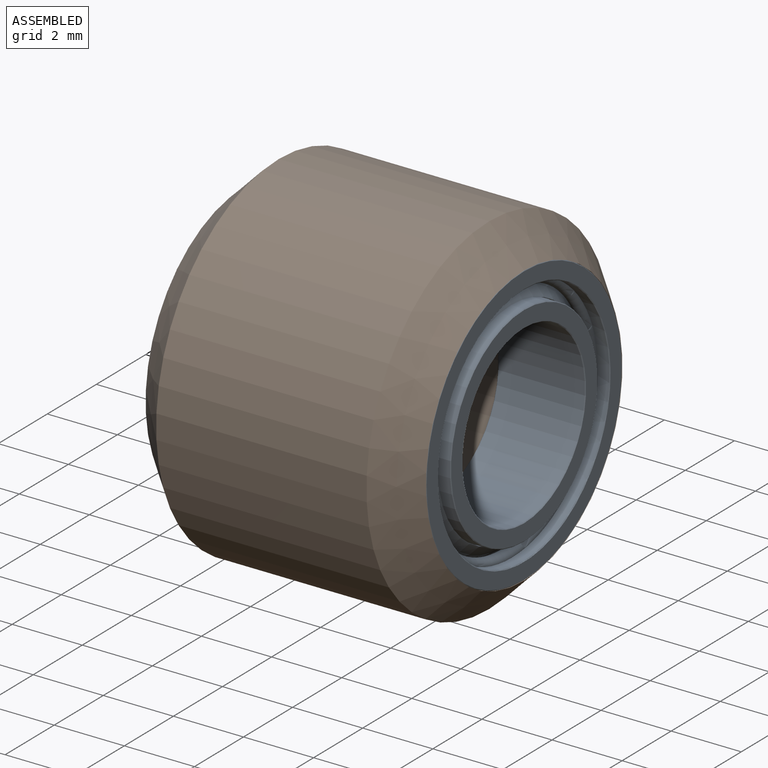
[diagram: assembled view]
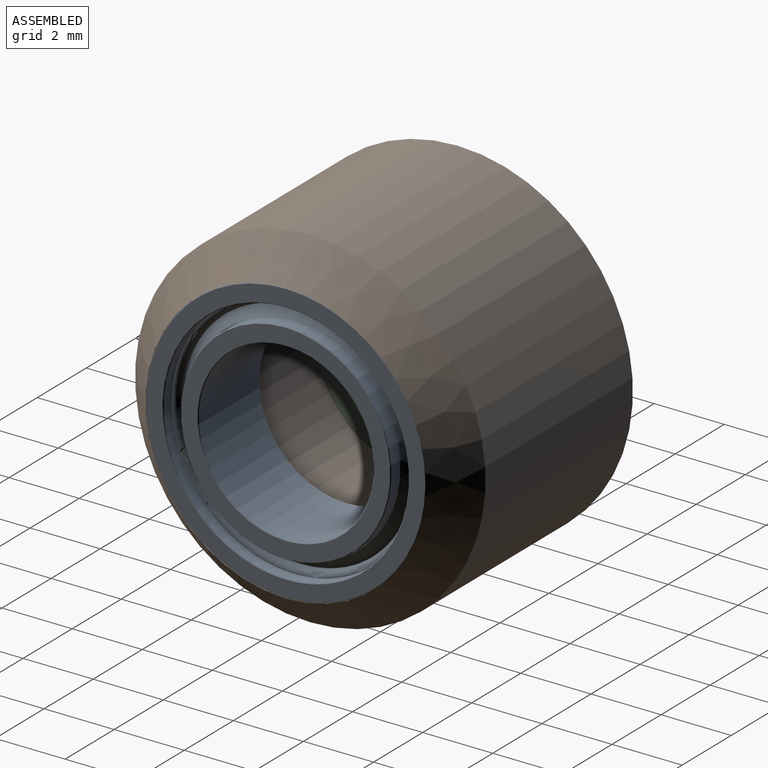
[diagram: assembled view, second angle]
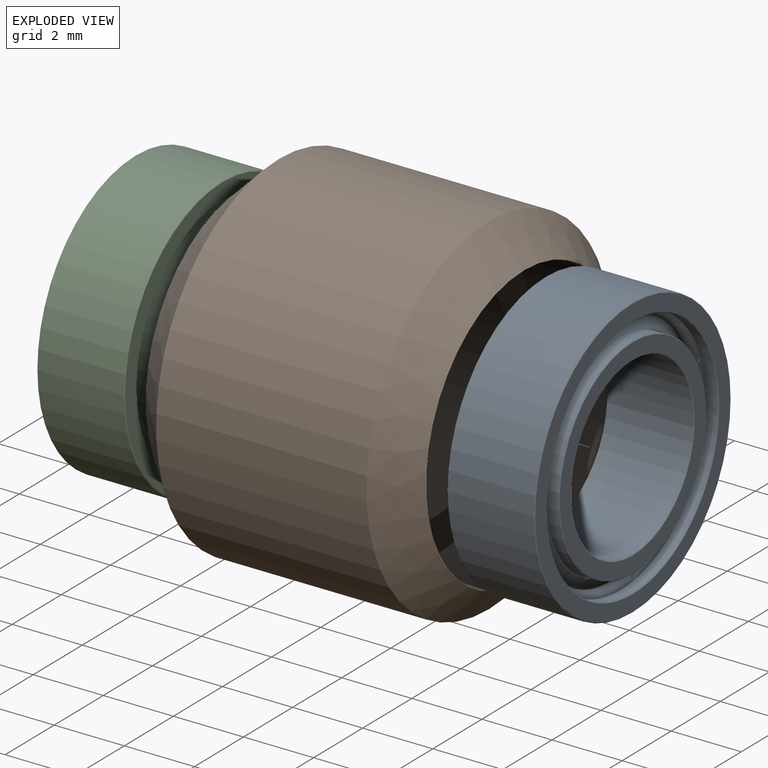
[diagram: exploded view]
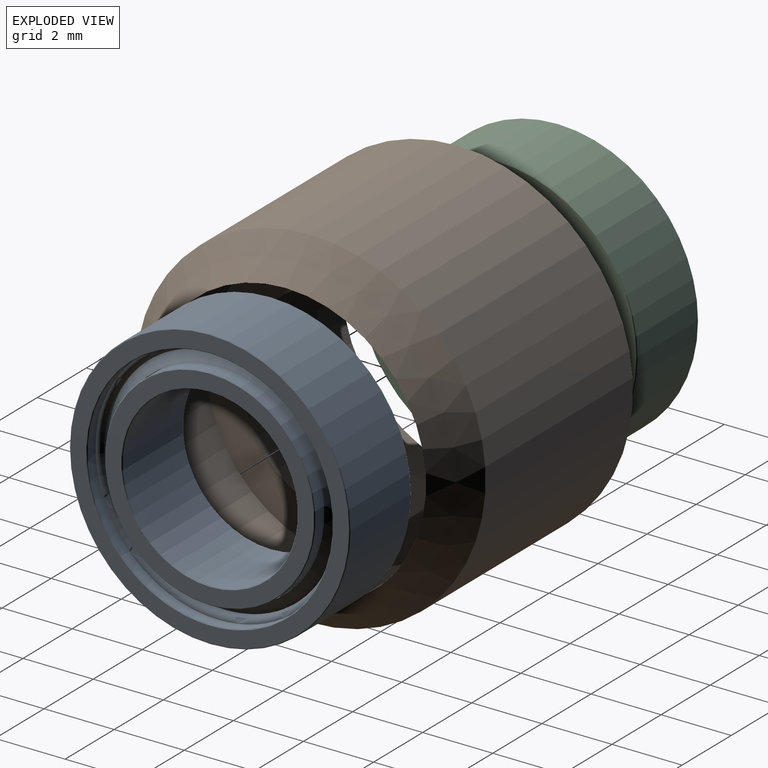
[diagram: exploded view, second angle]
ASSEMBLY  parts=3 mates=2
PART A: 46 faces, bbox 8.2x2.5x8.2 mm
  f0: torus R=3.5mm, axis (0,-1,0), area 10.7mm2, adj f14,f31
  f1: torus R=3.5mm, axis (0,1,0), area 10.7mm2, adj f13,f30
  f2: cone r=2.98mm half-angle=45deg, axis (0,-1,0), area 0.5mm2, adj f19,f25
  f3: cone r=2.5mm half-angle=45deg, axis (0,1,0), area 0.4mm2, adj f21,f25
  f4: cone r=3.5mm half-angle=45deg, axis (0,1,0), area 0.6mm2, adj f20,f26
  f5: cone r=3.98mm half-angle=45deg, axis (0,-1,0), area 0.7mm2, adj f22,f26
  f6: cone r=4mm half-angle=45deg, axis (0,1,0), area 0.7mm2, adj f22,f24
  f7: cone r=3.52mm half-angle=45deg, axis (0,-1,0), area 0.6mm2, adj f18,f24
  f8: cone r=3mm half-angle=45deg, axis (0,1,0), area 0.5mm2, adj f17,f27
  f9: cone r=2.52mm half-angle=45deg, axis (0,-1,0), area 0.4mm2, adj f21,f27
  f10: cylinder r=3.02mm len=6.03mm, axis (0,-1,0), area 2.6mm2, adj f23,f29
  f11: cylinder r=3.02mm len=6.03mm, axis (0,1,0), area 2.6mm2, adj f12,f28
  f12: torus R=2.81mm, axis (0,1,0), area 1.2mm2, adj f11,f15
  f13: torus R=3.52mm, axis (0,1,0), area 4.3mm2, adj f1,f15
  f14: torus R=3.52mm, axis (0,-1,0), area 4.3mm2, adj f0,f16
  f15: cone r=3.01mm half-angle=45deg, axis (0,-1,0), area 5.7mm2, adj f12,f13
  f16: cone r=3.37mm half-angle=45deg, axis (0,1,0), area 5.7mm2, adj f14,f23
  f17: cylinder r=3mm len=6mm, axis (0,-1,0), area 9mm2, adj f8,f29
  f18: cylinder r=3.5mm len=7mm, axis (0,-1,0), area 7.3mm2, adj f7,f31
  f19: cylinder r=3mm len=6mm, axis (0,1,0), area 9mm2, adj f2,f28
  f20: cylinder r=3.5mm len=7mm, axis (0,1,0), area 7.3mm2, adj f4,f30
  f21: cylinder r=2.5mm len=5mm, axis (0,-1,0), area 38.6mm2, adj f3,f9
  f22: cylinder r=4mm len=8mm, axis (0,-1,0), area 61.8mm2, adj f5,f6
  f23: torus R=2.81mm, axis (0,-1,0), area 1.2mm2, adj f10,f16
  f24: plane 7.96x7.96mm, normal (0,-1,0), area 10.8mm2, adj f6,f7
  f25: plane 5.96x5.96mm, normal (0,1,0), area 7.9mm2, adj f2,f3
  f26: plane 7.96x7.96mm, normal (0,1,0), area 10.8mm2, adj f4,f5
  f27: plane 5.96x5.96mm, normal (0,-1,0), area 7.9mm2, adj f8,f9
  f28: plane 6.03x6.03mm, normal (0,1,0), area 0.3mm2, adj f11,f19
  f29: plane 6.03x6.03mm, normal (0,-1,0), area 0.3mm2, adj f10,f17
  f30: plane 7x7mm, normal (0,1,0), area 0.1mm2, adj f1,f20
  f31: plane 7x7mm, normal (0,-1,0), area 0.1mm2, adj f0,f18
  f32: torus R=3.5mm, axis (0,-1,0), area 6.1mm2, adj f33,f34
  f33: torus R=3.52mm, axis (0,-1,0), area 0.3mm2, adj f32,f35
  f34: cylinder r=3.68mm len=7.36mm, axis (0,-1,0), area 4mm2, adj f32,f35
  f35: plane 7.36x7.36mm, normal (0,-1,0), area 3.6mm2, adj f33,f34
  f36: cylinder r=3.68mm len=7.36mm, axis (0,-1,0), area 4mm2, adj f37,f38
  f37: torus R=3.5mm, axis (0,-1,0), area 6.2mm2, adj f36,f38
  f38: plane 7.36x7.36mm, normal (0,1,0), area 3.9mm2, adj f36,f37
  f39: torus R=3.5mm, axis (0,1,0), area 6.2mm2, adj f40,f41
  f40: cylinder r=3.68mm len=7.36mm, axis (0,1,0), area 4mm2, adj f39,f41
  f41: plane 7.36x7.36mm, normal (0,-1,0), area 3.9mm2, adj f39,f40
  f42: torus R=3.5mm, axis (0,1,0), area 6.1mm2, adj f43,f44
  f43: torus R=3.52mm, axis (0,1,0), area 0.3mm2, adj f42,f45
  f44: cylinder r=3.68mm len=7.36mm, axis (0,1,0), area 4mm2, adj f42,f45
  f45: plane 7.36x7.36mm, normal (0,1,0), area 3.6mm2, adj f43,f44
PART B: 8 faces, bbox 8x10x10 mm
  f0: cylinder r=3mm len=6mm, axis (1,0,0), area 56.5mm2, adj f6,f7
  f1: cylinder r=4mm len=8mm, axis (-1,0,0), area 62.8mm2, adj f4,f7
  f2: cylinder r=4mm len=8mm, axis (1,0,0), area 62.8mm2, adj f5,f6
  f3: cylinder r=5mm len=10mm, axis (-1,0,0), area 188.5mm2, adj f4,f5
  f4: cone r=5mm half-angle=45deg, axis (1,0,0), area 40mm2, adj f1,f3
  f5: cone r=4mm half-angle=45deg, axis (-1,0,0), area 40mm2, adj f2,f3
  f6: plane 8x8mm, normal (1,0,0), area 22mm2, adj f0,f2
  f7: plane 8x8mm, normal (-1,0,0), area 22mm2, adj f0,f1
PART C: same geometry as A
PLACE A rot(axis=(0,0,1),90deg) t=(-11.3,6.66,2.89)mm
PLACE B t=(-14.05,6.66,2.89)mm
PLACE C rot(axis=(0,0,1),90deg) t=(-16.8,6.66,2.89)mm
MATE revolute C.f0 <-> B.f0  axis (1,0,0) through (-15.55,6.66,2.89)mm
MATE revolute A.f0 <-> B.f0  axis (-1,0,0) through (-12.55,6.66,2.89)mm
